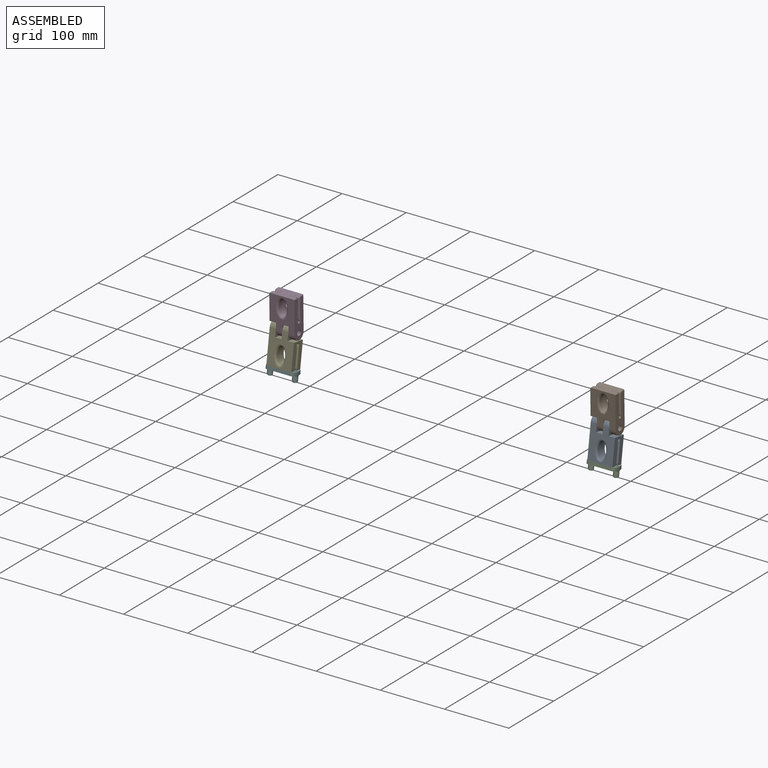
[diagram: assembled view]
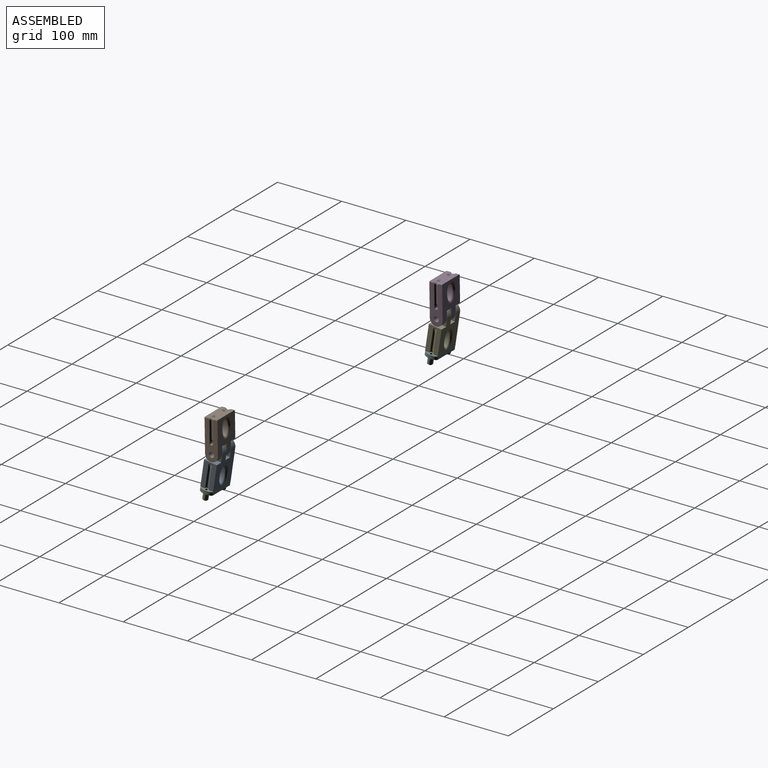
[diagram: assembled view, second angle]
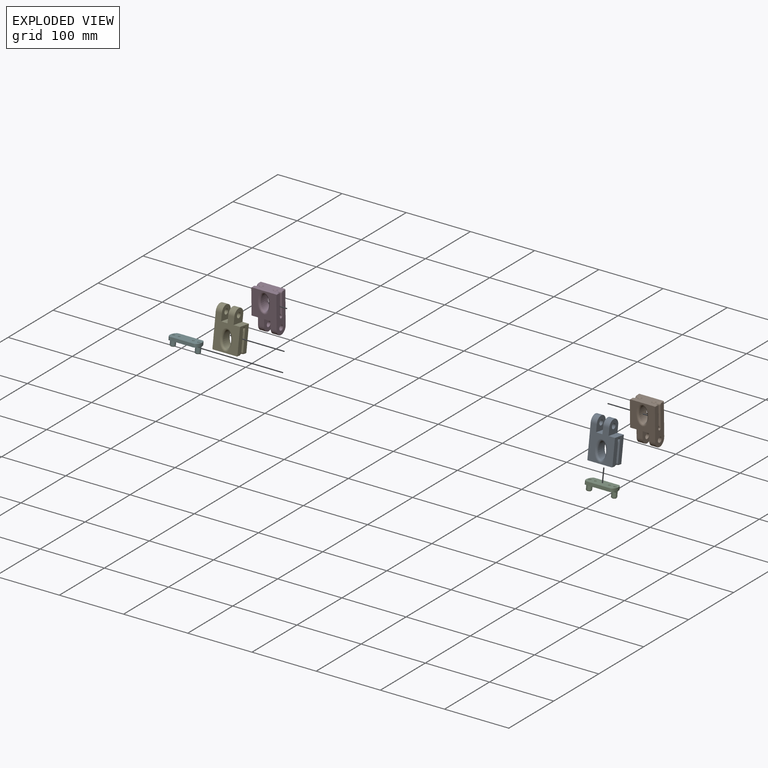
[diagram: exploded view]
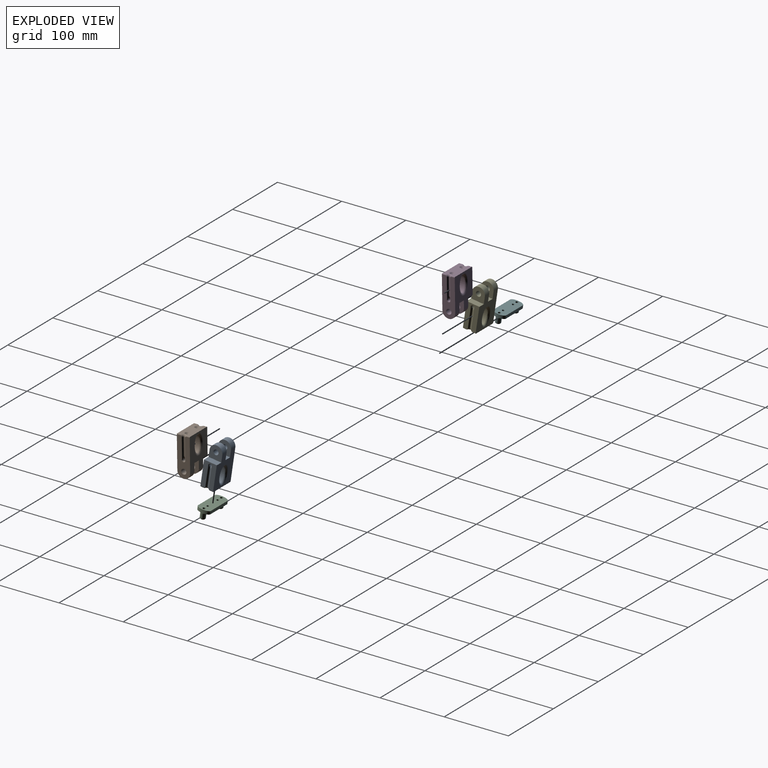
[diagram: exploded view, second angle]
ASSEMBLY  parts=6 mates=2
PART A: 48 faces, bbox 39x61x20 mm
  f0: plane 37x20mm, normal (0,-1,0), area 608.7mm2, adj f9,f10,f20,f21,f24,f32,f33,f41
  f1: plane 60x20mm, normal (-1,0,0), area 898.3mm2, adj f9,f10,f12,f13,f24,f25,f26,f27
  f2: plane 39x20mm, normal (1,0,0), area 571.5mm2, adj f3,f9,f10,f33,f34,f35,f36,f37
  f3: plane 20x10mm, normal (0,1,0), area 200mm2, adj f2,f4,f9,f10
  f4: plane 21x20mm, normal (1,0,0), area 326.8mm2, adj f3,f9,f10,f11,f14
  f5: plane 21x20mm, normal (-1,0,0), area 326.8mm2, adj f6,f9,f10,f11,f14
  f6: plane 20x10mm, normal (0,1,0), area 200mm2, adj f5,f7,f9,f10
  f7: plane 21x20mm, normal (1,0,0), area 326.8mm2, adj f6,f9,f10,f12,f13
  f8: extruded ~24.88x14mm, area 856.6mm2, adj f22,f23
  f9: plane 51x39mm, normal (0,0,1), area 1301.4mm2, adj f0,f1,f2,f3,f4,f5,f6,f7
  f10: plane 51x39mm, normal (0,0,-1), area 1301.6mm2, adj f0,f1,f2,f3,f4,f5,f6,f7
  f11: cylinder r=10mm len=20mm, axis (1,0,0), area 298.5mm2, adj f4,f5,f9,f10
  f12: cylinder r=10mm len=20mm, axis (1,0,0), area 298.5mm2, adj f1,f7,f9,f10
  f13: cylinder r=4mm len=9.5mm, axis (-1,0,0), area 238.8mm2, adj f1,f7
  f14: cylinder r=4mm len=9.5mm, axis (-1,0,0), area 238.8mm2, adj f4,f5
  f15: cylinder r=2mm len=37mm, axis (-1,0,0), area 436.7mm2, adj f18,f19,f28,f37
  f16: cylinder r=2mm len=30.33mm, axis (0,-1,0), area 138.7mm2, adj f19,f20,f35,f39
  f17: cylinder r=2mm len=30.33mm, axis (0,-1,0), area 138.7mm2, adj f18,f21,f26,f30
  f18: bspline ~4.67x4.67mm, area 22.1mm2, adj f15,f17,f27,f29
  f19: bspline ~4.67x4.67mm, area 22.1mm2, adj f15,f16,f36,f38
  f20: torus R=5mm, axis (0,1,0), area 38.2mm2, adj f0,f16,f34,f40
  f21: torus R=5mm, axis (0,1,0), area 38.2mm2, adj f0,f17,f25,f31
  f22: bspline ~31x19.01mm, area 320.6mm2, adj f8,f10
  f23: bspline ~31x19.01mm, area 320.6mm2, adj f8,f9
  f24: cylinder r=1mm len=5.1mm, axis (0,0,1), area 8mm2, adj f0,f1,f10,f25
  f25: bspline ~3.7x3.66mm, area 5.7mm2, adj f1,f21,f24,f26
  f26: cylinder r=1mm len=30.33mm, axis (0,-1,0), area 37.3mm2, adj f1,f17,f25,f27
  f27: bspline ~2.63x1.28mm, area 1.7mm2, adj f1,f18,f26,f28
  f28: torus R=3mm, axis (-1,0,0), area 13.2mm2, adj f1,f15,f27,f29
  f29: bspline ~1.5x1.09mm, area 1.7mm2, adj f1,f18,f28,f30
  f30: cylinder r=1mm len=30.33mm, axis (0,-1,0), area 37.3mm2, adj f1,f17,f29,f31
  f31: bspline ~3.66x3.19mm, area 5.7mm2, adj f1,f21,f30,f32
  f32: cylinder r=1mm len=5.1mm, axis (0,0,1), area 8mm2, adj f0,f1,f9,f31
  f33: cylinder r=1mm len=5.1mm, axis (0,0,-1), area 8mm2, adj f0,f2,f10,f34
  f34: bspline ~3.7x3.66mm, area 5.7mm2, adj f2,f20,f33,f35
  f35: cylinder r=1mm len=30.33mm, axis (0,-1,0), area 37.3mm2, adj f2,f16,f34,f36
  f36: bspline ~3.04x1.28mm, area 1.7mm2, adj f2,f19,f35,f37
  f37: torus R=3mm, axis (-1,0,0), area 13.2mm2, adj f2,f15,f36,f38
  f38: bspline ~2.62x1.25mm, area 1.7mm2, adj f2,f19,f37,f39
  f39: cylinder r=1mm len=30.33mm, axis (0,-1,0), area 37.3mm2, adj f2,f16,f38,f40
  f40: bspline ~3.66x3.19mm, area 5.7mm2, adj f2,f20,f39,f41
  f41: cylinder r=1mm len=5.1mm, axis (0,0,-1), area 8mm2, adj f0,f2,f9,f40
  f42: cylinder r=1.4mm len=23mm, axis (0,-1,0), area 202.3mm2, adj f43,f47
  f43: plane 2.8x2.8mm, normal (0,-1,0), area 6.2mm2, adj f42
  f44: cylinder r=1.4mm len=23mm, axis (0,-1,0), area 202.3mm2, adj f45,f46
  f45: plane 2.8x2.8mm, normal (0,-1,0), area 6.2mm2, adj f44
  f46: cone r=1.4mm half-angle=45deg, axis (0,-1,0), area 42.7mm2, adj f0,f44
  f47: cone r=3.4mm half-angle=45deg, axis (0,-1,0), area 42.7mm2, adj f0,f42
PART B: same geometry as A
PART C: 18 faces, bbox 49x15x20 mm
  f0: plane 37x5mm, normal (0,0,1), area 185mm2, adj f1,f6,f8,f9
  f1: extruded ~20x6mm, area 125.5mm2, adj f0,f2,f8,f9,f12
  f2: plane 37x5mm, normal (0,0,-1), area 185mm2, adj f1,f6,f8,f9
  f3: cylinder r=1.75mm len=5mm, axis (0,1,0), area 55mm2, adj f8,f9
  f4: cylinder r=2mm len=14mm, axis (0,1,0), area 175.9mm2, adj f9,f14
  f5: cylinder r=2mm len=14mm, axis (0,1,0), area 175.9mm2, adj f9,f16
  f6: extruded ~20x6mm, area 125.5mm2, adj f0,f2,f8,f9,f13
  f7: cylinder r=1.75mm len=5mm, axis (0,1,0), area 55mm2, adj f8,f9
  f8: plane 46.42x20mm, normal (0,-1,0), area 730mm2, adj f0,f1,f2,f3,f6,f7,f12,f13
  f9: plane 47x20mm, normal (0,1,0), area 852.7mm2, adj f0,f1,f2,f3,f4,f5,f6,f7
  f10: cylinder r=4mm len=8mm, axis (0,1,0), area 201.1mm2, adj f12,f17
  f11: cylinder r=4mm len=8mm, axis (0,1,0), area 201.1mm2, adj f13,f15
  f12: cone r=5mm half-angle=45deg, axis (0,1,0), area 33.4mm2, adj f1,f8,f10
  f13: cone r=5mm half-angle=45deg, axis (0,1,0), area 33.4mm2, adj f6,f8,f11
  f14: cone r=2mm half-angle=45deg, axis (0,-1,0), area 22.2mm2, adj f4,f15
  f15: cone r=3mm half-angle=45deg, axis (0,1,0), area 31.1mm2, adj f11,f14
  f16: cone r=2mm half-angle=45deg, axis (0,-1,0), area 22.2mm2, adj f5,f17
  f17: cone r=3mm half-angle=45deg, axis (0,1,0), area 31.1mm2, adj f10,f16
PART D: same geometry as A
PART E: same geometry as A
PART F: same geometry as C
PLACE A rot(axis=(1,0,0),81.6deg) t=(30.91,78.79,-26.81)mm
PLACE B rot(axis=(0,0.71,-0.7),180deg) t=(69.91,85.59,76.26)mm fixed
PLACE C rot(axis=(1,0,0),81.6deg) t=(30.91,78.79,-26.81)mm
PLACE D rot(axis=(0,0.71,-0.7),180deg) t=(-430.09,85.59,76.26)mm
PLACE E rot(axis=(1,0,0),81.6deg) t=(-469.09,78.79,-26.81)mm
PLACE F rot(axis=(1,0,0),81.6deg) t=(-469.09,78.79,-26.81)mm
MATE revolute A.f11 <-> B.f11  axis (-1,0,0) through (40.41,76.37,25.11)mm
MATE fastened C.f9 <-> A.f0  axis (0,0.15,0.99) through (50.41,59.01,-23.88)mm
